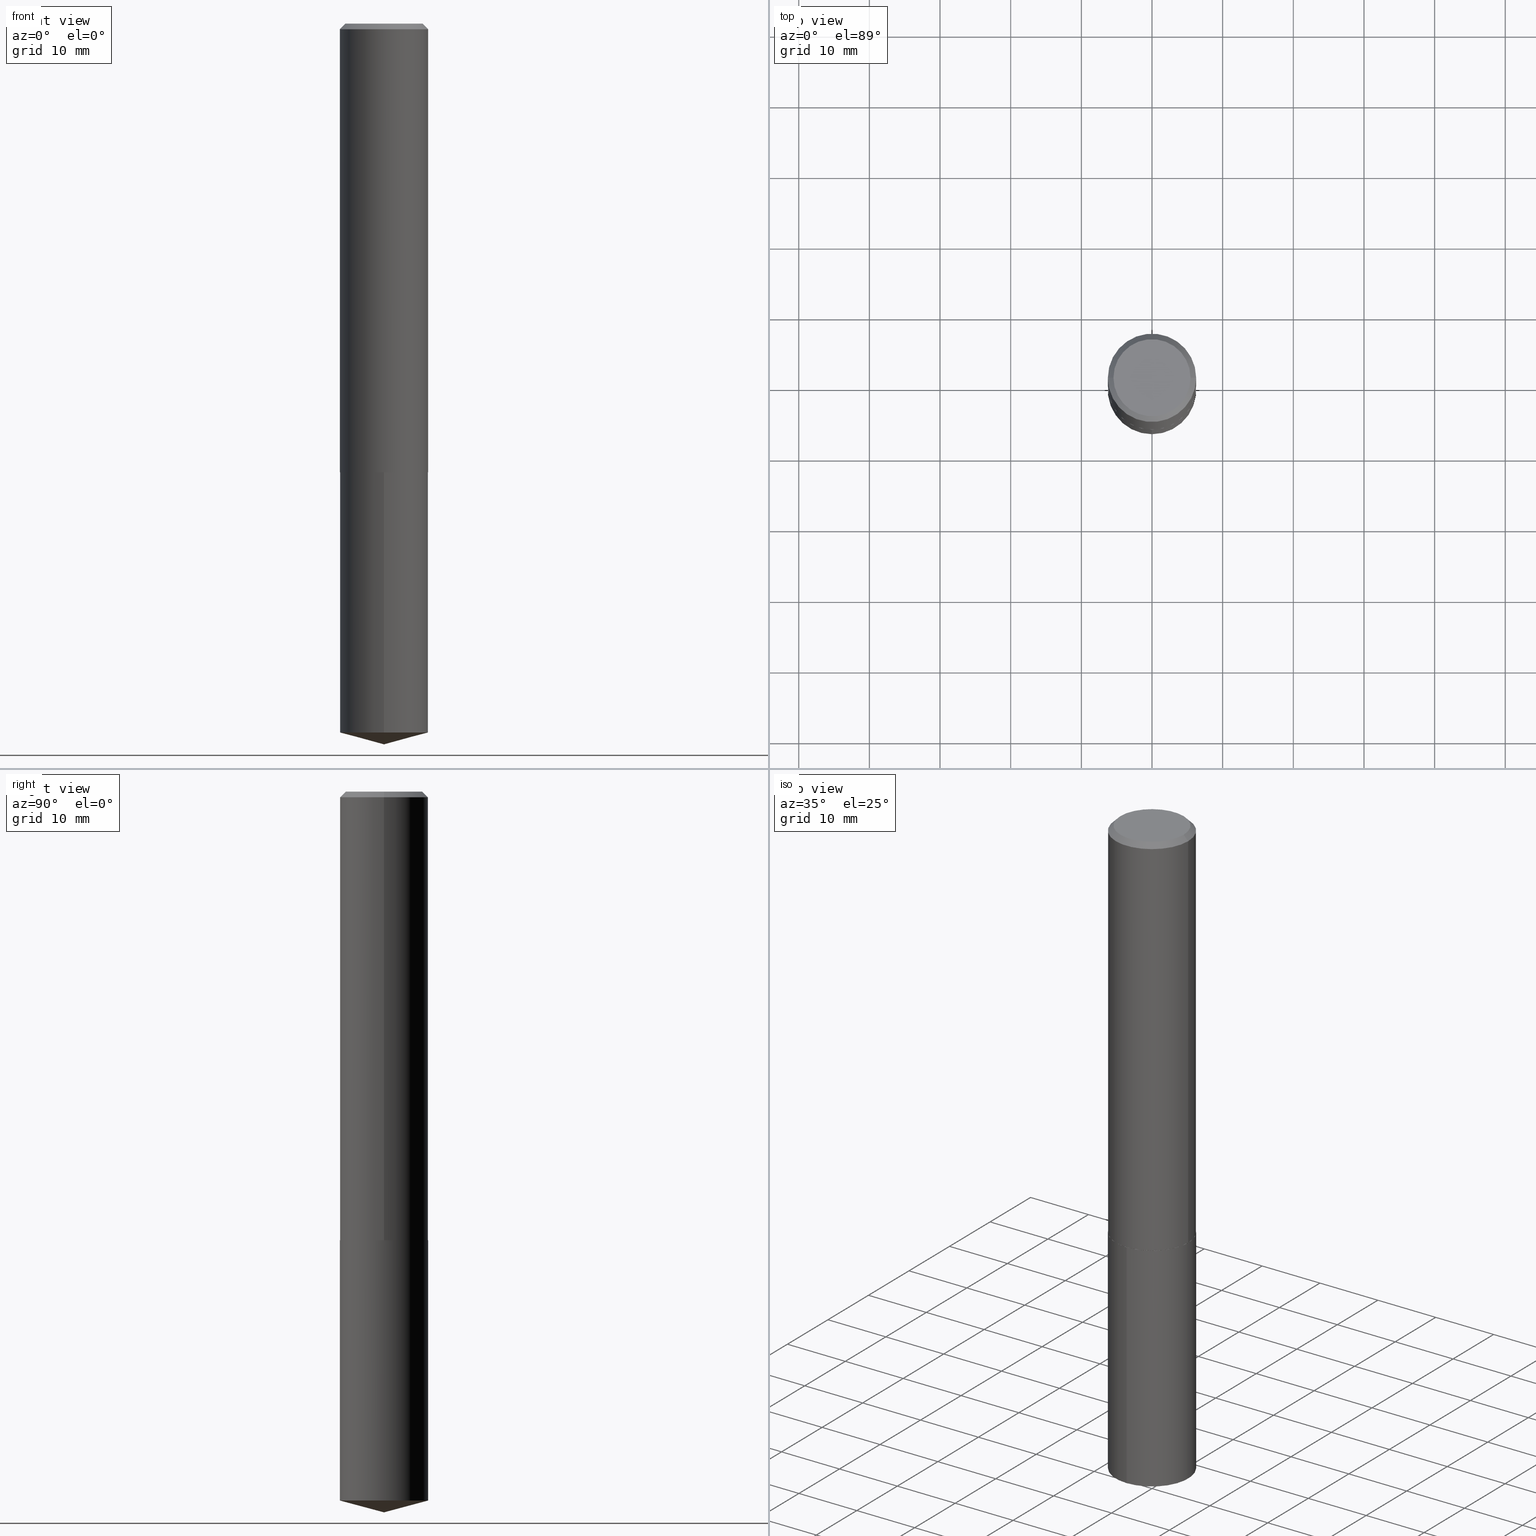
[diagram: canonical four-view strip — front | top / right | iso, engineering-drawing reading convention]
A machine part, canonical four-view strip (front | top / right | iso — engineering-drawing reading convention). The complete STEP part file that produces these views, byte-faithful:
ISO-10303-21;
HEADER;
FILE_DESCRIPTION (( 'STEP AP203' ),
    '1' );
FILE_NAME ('69045.STEP',
    '2024-04-23T14:37:59',
    ( '' ),
    ( '' ),
    'SwSTEP 2.0',
    'SolidWorks 2023',
    '' );
FILE_SCHEMA (( 'CONFIG_CONTROL_DESIGN' ));
ENDSEC;

DATA;
#1 = DIRECTION ( 'NONE',  ( -0.7071067811868855246, 7.493145998871575317E-15, 0.7071067811862095098 ) ) ;
#2 = CIRCLE ( 'NONE', #312, 0.2460500000000002963 ) ;
#3 = MECHANICAL_CONTEXT ( 'NONE', #172, 'mechanical' ) ;
#4 = VERTEX_POINT ( 'NONE', #260 ) ;
#5 = PERSON_AND_ORGANIZATION_ROLE ( 'creator' ) ;
#6 = DIRECTION ( 'NONE',  ( -6.745023994389839133E-15, -0.9659258262890676461, 0.2588190451025225713 ) ) ;
#7 = ADVANCED_FACE ( 'NONE', ( #365 ), #93, .T. ) ;
#8 = PERSON_AND_ORGANIZATION ( #285, #183 ) ;
#9 = DIRECTION ( 'NONE',  ( -2.438088387897960049E-29, 3.491481338843145188E-15, 1.000000000000000000 ) ) ;
#10 = PRODUCT_DEFINITION_FORMATION_WITH_SPECIFIED_SOURCE ( 'ANY', '', #186, .NOT_KNOWN. ) ;
#11 = CARTESIAN_POINT ( 'NONE',  ( -0.2455500000000002125, -6.980967284140940741E-15, -2.499899999999999789 ) ) ;
#12 = EDGE_CURVE ( 'NONE', #211, #199, #232, .T. ) ;
#13 = DIRECTION ( 'NONE',  ( 1.000000000000000000, -6.982962677686265922E-15, 0.000000000000000000 ) ) ;
#14 = CARTESIAN_POINT ( 'NONE',  ( -8.644804156119283188E-28, 1.234534581619819619E-13, 35.35437874015748605 ) ) ;
#15 = CLOSED_SHELL ( 'NONE', ( #87, #7, #227, #259, #295 ) ) ;
#16 = APPROVAL_PERSON_ORGANIZATION ( #115, #261, #29 ) ;
#17 = CARTESIAN_POINT ( 'NONE',  ( 0.2460500000000001575, -1.718157966844706921E-15, 1.199783295684590764E-29 ) ) ;
#18 = CARTESIAN_POINT ( 'NONE',  ( 9.658659434360956272E-29, -1.379109997633285190E-14, -3.949771101202322665 ) ) ;
#19 = CARTESIAN_POINT ( 'NONE',  ( -2.949913012720698115E-47, 4.211693974208535336E-33, 1.206277097160147711E-18 ) ) ;
#20 = ORIENTED_EDGE ( 'NONE', *, *, #112, .F. ) ;
#21 = AXIS2_PLACEMENT_3D ( 'NONE', #212, #101, #189 ) ;
#22 = PLANE ( 'NONE',  #194 ) ;
#23 = DIRECTION ( 'NONE',  ( -1.000000000000000000, 6.982962677686265922E-15, 0.000000000000000000 ) ) ;
#24 = EDGE_LOOP ( 'NONE', ( #20, #149, #351, #137 ) ) ;
#25 = EDGE_CURVE ( 'NONE', #267, #388, #72, .T. ) ;
#26 = CIRCLE ( 'NONE', #319, 0.2460499999999999909 ) ;
#27 = VERTEX_POINT ( 'NONE', #327 ) ;
#28 = ORIENTED_EDGE ( 'NONE', *, *, #25, .T. ) ;
#29 = APPROVAL_ROLE ( '' ) ;
#30 = ORIENTED_EDGE ( 'NONE', *, *, #109, .F. ) ;
#31 = EDGE_CURVE ( 'NONE', #4, #27, #323, .T. ) ;
#32 = CIRCLE ( 'NONE', #21, 0.2460499999999999909 ) ;
#33 = AXIS2_PLACEMENT_3D ( 'NONE', #47, #160, #99 ) ;
#34 = ORIENTED_EDGE ( 'NONE', *, *, #156, .T. ) ;
#35 = CIRCLE ( 'NONE', #230, 0.2460499999999999909 ) ;
#36 = ADVANCED_FACE ( 'NONE', ( #178 ), #290, .F. ) ;
#37 = ORIENTED_EDGE ( 'NONE', *, *, #156, .F. ) ;
#38 = CARTESIAN_POINT ( 'NONE',  ( -1.718157966844644601E-15, -0.2460500000000087339, -2.499899999999999345 ) ) ;
#39 = FACE_OUTER_BOUND ( 'NONE', #390, .T. ) ;
#40 = AXIS2_PLACEMENT_3D ( 'NONE', #80, #163, #277 ) ;
#41 = EDGE_CURVE ( 'NONE', #66, #211, #385, .T. ) ;
#42 = APPROVAL_DATE_TIME ( #221, #132 ) ;
#43 =( LENGTH_UNIT ( ) NAMED_UNIT ( * ) SI_UNIT ( $, .METRE. ) );
#44 = LINE ( 'NONE', #45, #145 ) ;
#45 = CARTESIAN_POINT ( 'NONE',  ( 0.2460499999999999909, -1.797134324190534528E-15, -0.03125000000000020123 ) ) ;
#46 = DIRECTION ( 'NONE',  ( -2.445468806185136597E-29, 3.491481338843145583E-15, 1.000000000000000000 ) ) ;
#47 = CARTESIAN_POINT ( 'NONE',  ( 7.642090019328601786E-31, -1.091087918388490144E-16, -0.03125000000000020123 ) ) ;
#48 = CIRCLE ( 'NONE', #200, 0.2455500000000002125 ) ;
#49 =( CONVERSION_BASED_UNIT ( 'INCH', #273 ) LENGTH_UNIT ( ) NAMED_UNIT ( #383 ) );
#50 = DIRECTION ( 'NONE',  ( -2.445204930865101317E-29, 3.491859223320286804E-15, 1.000000000000000000 ) ) ;
#51 = DIRECTION ( 'NONE',  ( 1.000000000000000000, -6.982962677686265922E-15, 4.876176775795935793E-29 ) ) ;
#52 = CC_DESIGN_PERSON_AND_ORGANIZATION_ASSIGNMENT ( #8, #321, ( #186 ) ) ;
#53 = CARTESIAN_POINT ( 'NONE',  ( 0.000000000000000000, 0.000000000000000000, 0.000000000000000000 ) ) ;
#54 = AXIS2_PLACEMENT_3D ( 'NONE', #103, #46, #214 ) ;
#55 = DIRECTION ( 'NONE',  ( 1.000000000000000000, -6.982962677686265922E-15, 4.876176775795935793E-29 ) ) ;
#56 = ORIENTED_EDGE ( 'NONE', *, *, #203, .F. ) ;
#57 = CC_DESIGN_PERSON_AND_ORGANIZATION_ASSIGNMENT ( #148, #5, ( #10 ) ) ;
#58 = DIRECTION ( 'NONE',  ( -2.445204930865101317E-29, 3.491859223320286804E-15, 1.000000000000000000 ) ) ;
#59 = DATE_AND_TIME ( #82, #161 ) ;
#60 = ORIENTED_EDGE ( 'NONE', *, *, #31, .F. ) ;
#61 = APPLICATION_PROTOCOL_DEFINITION ( 'international standard', 'config_control_design', 1994, #288 ) ;
#62 = ORIENTED_EDGE ( 'NONE', *, *, #41, .T. ) ;
#63 = ORIENTED_EDGE ( 'NONE', *, *, #12, .T. ) ;
#64 = PERSON_AND_ORGANIZATION ( #285, #183 ) ;
#65 = AXIS2_PLACEMENT_3D ( 'NONE', #193, #384, #229 ) ;
#66 = VERTEX_POINT ( 'NONE', #245 ) ;
#67 = COORDINATED_UNIVERSAL_TIME_OFFSET ( 5, 0, .BEHIND. ) ;
#68 = LINE ( 'NONE', #244, #81 ) ;
#69 = CARTESIAN_POINT ( 'NONE',  ( 6.113427468582223828E-29, -8.728354198973981431E-15, -2.499900000000000233 ) ) ;
#70 = CARTESIAN_POINT ( 'NONE',  ( 0.2460499999999999909, -1.827266758683554839E-15, -0.03125000000000020123 ) ) ;
#71 = DIRECTION ( 'NONE',  ( -2.445468806185136597E-29, 3.491481338843145583E-15, 1.000000000000000000 ) ) ;
#72 = CIRCLE ( 'NONE', #175, 0.2460499999999999909 ) ;
#73 = VECTOR ( 'NONE', #131, 39.37007874015748143 ) ;
#74 = LINE ( 'NONE', #315, #73 ) ;
#75 = LINE ( 'NONE', #185, #247 ) ;
#76 = EDGE_CURVE ( 'NONE', #236, #202, #322, .T. ) ;
#77 = CYLINDRICAL_SURFACE ( 'NONE', #65, 0.2460499999999999909 ) ;
#78 = DIRECTION ( 'NONE',  ( -6.982962677686265922E-15, -1.000000000000000000, 4.441126589984577246E-15 ) ) ;
#79 = CARTESIAN_POINT ( 'NONE',  ( 0.2147999999999999909, -1.635384647055929600E-15, 1.206277097171110489E-18 ) ) ;
#80 = CARTESIAN_POINT ( 'NONE',  ( 6.112204734179131027E-29, -8.726608458304559138E-15, -2.499400000000000066 ) ) ;
#81 = VECTOR ( 'NONE', #333, 39.37007874015748143 ) ;
#82 = CALENDAR_DATE ( 2024, 23, 4 ) ;
#83 = EDGE_LOOP ( 'NONE', ( #228, #359 ) ) ;
#84 = VECTOR ( 'NONE', #6, 39.37007874015748854 ) ;
#85 = SECURITY_CLASSIFICATION ( '', '', #364 ) ;
#86 = ORIENTED_EDGE ( 'NONE', *, *, #240, .T. ) ;
#87 = ADVANCED_FACE ( 'NONE', ( #374 ), #96, .T. ) ;
#88 = EDGE_LOOP ( 'NONE', ( #363, #387 ) ) ;
#89 = EDGE_CURVE ( 'NONE', #91, #267, #191, .T. ) ;
#90 = APPROVAL_DATE_TIME ( #235, #261 ) ;
#91 = VERTEX_POINT ( 'NONE', #270 ) ;
#92 = PERSON_AND_ORGANIZATION ( #285, #183 ) ;
#93 = CONICAL_SURFACE ( 'NONE', #311, 146.9311341562559505, 1.308996938995748760 ) ;
#94 = AXIS2_PLACEMENT_3D ( 'NONE', #53, #284, #51 ) ;
#95 = ORIENTED_EDGE ( 'NONE', *, *, #174, .F. ) ;
#96 = CYLINDRICAL_SURFACE ( 'NONE', #377, 0.2460499999999999909 ) ;
#97 = PRODUCT_DEFINITION_SHAPE ( 'NONE', 'NONE',  #361 ) ;
#98 = LINE ( 'NONE', #17, #336 ) ;
#99 = DIRECTION ( 'NONE',  ( -1.000000000000000000, 6.982962677686265922E-15, 0.000000000000000000 ) ) ;
#100 = FACE_OUTER_BOUND ( 'NONE', #353, .T. ) ;
#101 = DIRECTION ( 'NONE',  ( -2.445204930865101317E-29, 3.491859223320286804E-15, 1.000000000000000000 ) ) ;
#102 = EDGE_CURVE ( 'NONE', #27, #140, #32, .T. ) ;
#103 = CARTESIAN_POINT ( 'NONE',  ( 6.112204734179131027E-29, -8.726608458304559138E-15, -2.499400000000000066 ) ) ;
#104 = CARTESIAN_POINT ( 'NONE',  ( 6.112204734179131027E-29, -8.726608458304559138E-15, -2.499400000000000066 ) ) ;
#105 = CC_DESIGN_APPROVAL ( #162, ( #10 ) ) ;
#106 = EDGE_CURVE ( 'NONE', #182, #388, #98, .T. ) ;
#107 = CARTESIAN_POINT ( 'NONE',  ( 6.113427468582222707E-29, -8.728354198973978275E-15, -2.499899999999999789 ) ) ;
#108 = FACE_OUTER_BOUND ( 'NONE', #293, .T. ) ;
#109 = EDGE_CURVE ( 'NONE', #202, #236, #167, .T. ) ;
#110 = ORIENTED_EDGE ( 'NONE', *, *, #237, .F. ) ;
#111 = CARTESIAN_POINT ( 'NONE',  ( 7.642090019328601786E-31, -1.091087918388490144E-16, -0.03125000000000020123 ) ) ;
#112 = EDGE_CURVE ( 'NONE', #199, #267, #123, .T. ) ;
#113 = ORIENTED_EDGE ( 'NONE', *, *, #357, .T. ) ;
#114 = ORIENTED_EDGE ( 'NONE', *, *, #76, .F. ) ;
#115 = PERSON_AND_ORGANIZATION ( #285, #183 ) ;
#116 = AXIS2_PLACEMENT_3D ( 'NONE', #130, #71, #304 ) ;
#117 = ORIENTED_EDGE ( 'NONE', *, *, #89, .F. ) ;
#118 = CARTESIAN_POINT ( 'NONE',  ( 7.642090019328601786E-31, -1.091087918388490144E-16, -0.03125000000000020123 ) ) ;
#119 = DIRECTION ( 'NONE',  ( 0.000000000000000000, 0.000000000000000000, 1.000000000000000000 ) ) ;
#120 = EDGE_LOOP ( 'NONE', ( #326, #243, #34, #279 ) ) ;
#121 = DATE_AND_TIME ( #144, #177 ) ;
#122 = CIRCLE ( 'NONE', #128, 0.2460500000000002963 ) ;
#123 = LINE ( 'NONE', #272, #265 ) ;
#124 = DIRECTION ( 'NONE',  ( -2.445468806185136597E-29, 3.491481338843145583E-15, 1.000000000000000000 ) ) ;
#125 = CC_DESIGN_PERSON_AND_ORGANIZATION_ASSIGNMENT ( #92, #331, ( #85 ) ) ;
#126 = CARTESIAN_POINT ( 'NONE',  ( 9.997693305512870448E-29, -3.165864441807387346E-15, -2.499900000000000233 ) ) ;
#127 = DIRECTION ( 'NONE',  ( -0.7071067811865453523, 2.468850131082234184E-15, -0.7071067811865496822 ) ) ;
#128 = AXIS2_PLACEMENT_3D ( 'NONE', #104, #136, #257 ) ;
#129 = ADVANCED_BREP_SHAPE_REPRESENTATION ( '69045', ( #242, #238, #337 ), #350 ) ;
#130 = CARTESIAN_POINT ( 'NONE',  ( 6.113427468582222707E-29, -8.728354198973978275E-15, -2.499899999999999789 ) ) ;
#131 = DIRECTION ( 'NONE',  ( -2.445204930865101317E-29, 3.491859223320287199E-15, 1.000000000000000000 ) ) ;
#132 = APPROVAL ( #369, 'UNSPECIFIED' ) ;
#133 = DIRECTION ( 'NONE',  ( 2.445468806185136597E-29, -3.491481338843145583E-15, -1.000000000000000000 ) ) ;
#134 = AXIS2_PLACEMENT_3D ( 'NONE', #126, #9, #246 ) ;
#135 = FACE_OUTER_BOUND ( 'NONE', #286, .T. ) ;
#136 = DIRECTION ( 'NONE',  ( -2.445468806185136597E-29, 3.491481338843145583E-15, 1.000000000000000000 ) ) ;
#137 = ORIENTED_EDGE ( 'NONE', *, *, #25, .F. ) ;
#138 = AXIS2_PLACEMENT_3D ( 'NONE', #14, #157, #220 ) ;
#139 = EDGE_LOOP ( 'NONE', ( #347, #171, #30, #287 ) ) ;
#140 = VERTEX_POINT ( 'NONE', #215 ) ;
#141 = DESIGN_CONTEXT ( 'detailed design', #288, 'design' ) ;
#142 = CALENDAR_DATE ( 2024, 23, 4 ) ;
#143 = DIRECTION ( 'NONE',  ( -6.982962677686265133E-15, -1.000000000000000000, 3.510303681827617951E-15 ) ) ;
#144 = CALENDAR_DATE ( 2024, 23, 4 ) ;
#145 = VECTOR ( 'NONE', #159, 39.37007874015748143 ) ;
#146 = AXIS2_PLACEMENT_3D ( 'NONE', #19, #380, #222 ) ;
#147 = ORIENTED_EDGE ( 'NONE', *, *, #106, .F. ) ;
#148 = PERSON_AND_ORGANIZATION ( #285, #183 ) ;
#149 = ORIENTED_EDGE ( 'NONE', *, *, #352, .T. ) ;
#150 =( NAMED_UNIT ( * ) SI_UNIT ( $, .STERADIAN. ) SOLID_ANGLE_UNIT ( ) );
#151 = DIRECTION ( 'NONE',  ( -2.445468806185136877E-29, 3.491481338843145188E-15, 1.000000000000000000 ) ) ;
#152 = AXIS2_PLACEMENT_3D ( 'NONE', #251, #368, #192 ) ;
#153 = AXIS2_PLACEMENT_3D ( 'NONE', #111, #133, #23 ) ;
#154 = DIRECTION ( 'NONE',  ( -2.445204930865101317E-29, 3.491859223320286804E-15, 1.000000000000000000 ) ) ;
#155 = PERSON_AND_ORGANIZATION ( #285, #183 ) ;
#156 = EDGE_CURVE ( 'NONE', #66, #182, #68, .T. ) ;
#157 = DIRECTION ( 'NONE',  ( -2.445204930865101317E-29, 3.491859223320286804E-15, 1.000000000000000000 ) ) ;
#158 =( NAMED_UNIT ( * ) PLANE_ANGLE_UNIT ( ) SI_UNIT ( $, .RADIAN. ) );
#159 = DIRECTION ( 'NONE',  ( 0.7071067811865453523, -7.319954787623248157E-15, -0.7071067811865496822 ) ) ;
#160 = DIRECTION ( 'NONE',  ( 2.445468806185136597E-29, -3.491481338843145583E-15, -1.000000000000000000 ) ) ;
#161 = LOCAL_TIME ( 10, 37, 59.00000000000000000, #292 ) ;
#162 = APPROVAL ( #179, 'UNSPECIFIED' ) ;
#163 = DIRECTION ( 'NONE',  ( -2.445468806185136597E-29, 3.491481338843145583E-15, 1.000000000000000000 ) ) ;
#164 = FACE_OUTER_BOUND ( 'NONE', #88, .T. ) ;
#165 = CYLINDRICAL_SURFACE ( 'NONE', #94, 0.2460500000000001575 ) ;
#166 = ORIENTED_EDGE ( 'NONE', *, *, #357, .F. ) ;
#167 = CIRCLE ( 'NONE', #216, 0.2460499999999999909 ) ;
#168 = CIRCLE ( 'NONE', #146, 0.2147999999999999909 ) ;
#169 = EDGE_CURVE ( 'NONE', #376, #388, #44, .T. ) ;
#170 = CARTESIAN_POINT ( 'NONE',  ( -1.474956506360349058E-47, 2.105846987104267668E-33, 6.031385485800738553E-19 ) ) ;
#171 = ORIENTED_EDGE ( 'NONE', *, *, #237, .T. ) ;
#172 = APPLICATION_CONTEXT ( 'configuration controlled 3d designs of mechanical parts and assemblies' ) ;
#173 = ORIENTED_EDGE ( 'NONE', *, *, #197, .F. ) ;
#174 = EDGE_CURVE ( 'NONE', #4, #140, #75, .T. ) ;
#175 = AXIS2_PLACEMENT_3D ( 'NONE', #118, #268, #204 ) ;
#176 = PERSON_AND_ORGANIZATION_ROLE ( 'design_supplier' ) ;
#177 = LOCAL_TIME ( 10, 37, 59.00000000000000000, #205 ) ;
#178 = FACE_OUTER_BOUND ( 'NONE', #239, .T. ) ;
#179 = APPROVAL_STATUS ( 'not_yet_approved' ) ;
#180 = ORIENTED_EDGE ( 'NONE', *, *, #102, .F. ) ;
#181 = ADVANCED_FACE ( 'NONE', ( #39 ), #349, .T. ) ;
#182 = VERTEX_POINT ( 'NONE', #303 ) ;
#183 = ORGANIZATION ( 'UNSPECIFIED', 'UNSPECIFIED', '' ) ;
#184 = ORIENTED_EDGE ( 'NONE', *, *, #89, .T. ) ;
#185 = CARTESIAN_POINT ( 'NONE',  ( 9.820540333612709261E-29, -1.402036973627846301E-14, -4.015699999999999825 ) ) ;
#186 = PRODUCT ( '69045', '69045', '', ( #3 ) ) ;
#187 = DIRECTION ( 'NONE',  ( -2.445468806185136597E-29, 3.491481338843145583E-15, 1.000000000000000000 ) ) ;
#188 = CLOSED_SHELL ( 'NONE', ( #281, #300, #341, #36, #381, #250, #181, #263 ) ) ;
#189 = DIRECTION ( 'NONE',  ( -6.982962677686265922E-15, -1.000000000000000000, 4.441126589984577246E-15 ) ) ;
#190 = UNCERTAINTY_MEASURE_WITH_UNIT (LENGTH_MEASURE( 1.000000000000000082E-05 ), #49, 'distance_accuracy_value', 'NONE');
#191 = LINE ( 'NONE', #310, #358 ) ;
#192 = DIRECTION ( 'NONE',  ( -6.982962677686265922E-15, -1.000000000000000000, 4.441126589984577246E-15 ) ) ;
#193 = CARTESIAN_POINT ( 'NONE',  ( 6.113427468582223828E-29, -8.728354198973981431E-15, -2.499900000000000233 ) ) ;
#194 = AXIS2_PLACEMENT_3D ( 'NONE', #170, #223, #278 ) ;
#195 = CARTESIAN_POINT ( 'NONE',  ( 6.112204734179131027E-29, -8.726608458304559138E-15, -2.499400000000000066 ) ) ;
#196 = FACE_OUTER_BOUND ( 'NONE', #120, .T. ) ;
#197 = EDGE_CURVE ( 'NONE', #376, #91, #210, .T. ) ;
#198 = DIRECTION ( 'NONE',  ( -2.445468806185136597E-29, 3.491481338843145583E-15, 1.000000000000000000 ) ) ;
#199 = VERTEX_POINT ( 'NONE', #249 ) ;
#200 = AXIS2_PLACEMENT_3D ( 'NONE', #107, #225, #346 ) ;
#201 = VECTOR ( 'NONE', #274, 39.37007874015748143 ) ;
#202 = VERTEX_POINT ( 'NONE', #38 ) ;
#203 = EDGE_CURVE ( 'NONE', #388, #267, #35, .T. ) ;
#204 = DIRECTION ( 'NONE',  ( 1.000000000000000000, -6.982962677686265922E-15, 0.000000000000000000 ) ) ;
#205 = COORDINATED_UNIVERSAL_TIME_OFFSET ( 5, 0, .BEHIND. ) ;
#206 = CONICAL_SURFACE ( 'NONE', #40, 0.2460500000000002963, 0.7853981633979263410 ) ;
#207 = EDGE_LOOP ( 'NONE', ( #62, #63, #166, #37 ) ) ;
#208 = CARTESIAN_POINT ( 'NONE',  ( -8.644804156119283188E-28, 1.234534581619819619E-13, 35.35437874015748605 ) ) ;
#209 = CARTESIAN_POINT ( 'NONE',  ( 9.819209440874986730E-29, -1.402225908308727515E-14, -4.015699999999999825 ) ) ;
#210 = CIRCLE ( 'NONE', #254, 0.2147999999999999909 ) ;
#211 = VERTEX_POINT ( 'NONE', #11 ) ;
#212 = CARTESIAN_POINT ( 'NONE',  ( 9.658659434360956272E-29, -1.379109997633285190E-14, -3.949771101202322665 ) ) ;
#213 = APPROVAL_ROLE ( '' ) ;
#214 = DIRECTION ( 'NONE',  ( 1.000000000000000000, -6.982962677686261977E-15, 0.000000000000000000 ) ) ;
#215 = CARTESIAN_POINT ( 'NONE',  ( 1.748290401337823473E-15, 0.2460499999999862797, -3.949771101202323553 ) ) ;
#216 = AXIS2_PLACEMENT_3D ( 'NONE', #309, #154, #332 ) ;
#217 = CONICAL_SURFACE ( 'NONE', #54, 0.2460500000000002963, 0.7853981633979263410 ) ;
#218 = DIRECTION ( 'NONE',  ( -2.445468806185136877E-29, 3.491481338843145188E-15, 1.000000000000000000 ) ) ;
#219 = CC_DESIGN_PERSON_AND_ORGANIZATION_ASSIGNMENT ( #302, #360, ( #361 ) ) ;
#220 = DIRECTION ( 'NONE',  ( -6.982962677686265133E-15, -1.000000000000000000, 3.510303681827617951E-15 ) ) ;
#221 = DATE_AND_TIME ( #308, #324 ) ;
#222 = DIRECTION ( 'NONE',  ( 1.000000000000000000, -6.982962677686266711E-15, 4.876228898018882925E-29 ) ) ;
#223 = DIRECTION ( 'NONE',  ( 2.438088387897960049E-29, -3.491481338843145188E-15, -1.000000000000000000 ) ) ;
#224 = APPROVAL_PERSON_ORGANIZATION ( #64, #162, #354 ) ;
#225 = DIRECTION ( 'NONE',  ( -2.445468806185136597E-29, 3.491481338843145583E-15, 1.000000000000000000 ) ) ;
#226 = DIRECTION ( 'NONE',  ( 2.445204930865100476E-29, -3.491859223320287199E-15, -1.000000000000000000 ) ) ;
#227 = ADVANCED_FACE ( 'NONE', ( #100 ), #297, .T. ) ;
#228 = ORIENTED_EDGE ( 'NONE', *, *, #109, .T. ) ;
#229 = DIRECTION ( 'NONE',  ( -6.982962677686265922E-15, -1.000000000000000000, 4.441126589984577246E-15 ) ) ;
#230 = AXIS2_PLACEMENT_3D ( 'NONE', #372, #187, #13 ) ;
#231 = ORIENTED_EDGE ( 'NONE', *, *, #269, .F. ) ;
#232 = LINE ( 'NONE', #264, #343 ) ;
#233 = CARTESIAN_POINT ( 'NONE',  ( 0.000000000000000000, 0.000000000000000000, 0.000000000000000000 ) ) ;
#234 = EDGE_LOOP ( 'NONE', ( #60, #355, #180 ) ) ;
#235 = DATE_AND_TIME ( #142, #344 ) ;
#236 = VERTEX_POINT ( 'NONE', #338 ) ;
#237 = EDGE_CURVE ( 'NONE', #140, #236, #334, .T. ) ;
#238 = MANIFOLD_SOLID_BREP ( 'Body-Move/Copy2[2]', #188 ) ;
#239 = EDGE_LOOP ( 'NONE', ( #382, #317 ) ) ;
#240 = EDGE_CURVE ( 'NONE', #27, #202, #74, .T. ) ;
#241 = PERSON_AND_ORGANIZATION ( #285, #183 ) ;
#242 = MANIFOLD_SOLID_BREP ( 'Body-Move/Copy2[1]', #15 ) ;
#243 = ORIENTED_EDGE ( 'NONE', *, *, #373, .T. ) ;
#244 = CARTESIAN_POINT ( 'NONE',  ( 0.2460500000000002963, -1.044476642514926527E-14, -2.499400000000000066 ) ) ;
#245 = CARTESIAN_POINT ( 'NONE',  ( 0.2455500000000002125, -1.044302068447984298E-14, -2.499899999999999789 ) ) ;
#246 = DIRECTION ( 'NONE',  ( 1.000000000000000000, -6.982962677686265922E-15, 4.876176775795935793E-29 ) ) ;
#247 = VECTOR ( 'NONE', #275, 39.37007874015748854 ) ;
#248 = AXIS2_PLACEMENT_3D ( 'NONE', #345, #379, #55 ) ;
#249 = CARTESIAN_POINT ( 'NONE',  ( -0.2460500000000002963, -6.978318056966829540E-15, -2.499400000000000066 ) ) ;
#250 = ADVANCED_FACE ( 'NONE', ( #348 ), #165, .T. ) ;
#251 = CARTESIAN_POINT ( 'NONE',  ( 6.113427468582223828E-29, -8.728354198973981431E-15, -2.499900000000000233 ) ) ;
#252 = CARTESIAN_POINT ( 'NONE',  ( -0.2460499999999999909, -2.669568223733975704E-15, -0.03125000000000020123 ) ) ;
#253 = DIRECTION ( 'NONE',  ( 6.982962677686265922E-15, 1.000000000000000000, -3.491859223320287199E-15 ) ) ;
#254 = AXIS2_PLACEMENT_3D ( 'NONE', #307, #124, #276 ) ;
#255 = CYLINDRICAL_SURFACE ( 'NONE', #248, 0.2460500000000001575 ) ;
#256 = ORIENTED_EDGE ( 'NONE', *, *, #291, .F. ) ;
#257 = DIRECTION ( 'NONE',  ( 1.000000000000000000, -6.982962677686261977E-15, 0.000000000000000000 ) ) ;
#258 = ORIENTED_EDGE ( 'NONE', *, *, #203, .T. ) ;
#259 = ADVANCED_FACE ( 'NONE', ( #316 ), #77, .T. ) ;
#260 = CARTESIAN_POINT ( 'NONE',  ( 9.819209440874985609E-29, -1.402225908308727515E-14, -4.015699999999999825 ) ) ;
#261 = APPROVAL ( #389, 'UNSPECIFIED' ) ;
#262 = ORIENTED_EDGE ( 'NONE', *, *, #291, .T. ) ;
#263 = ADVANCED_FACE ( 'NONE', ( #164 ), #22, .F. ) ;
#264 = CARTESIAN_POINT ( 'NONE',  ( -0.2460500000000002963, -6.978318056966829540E-15, -2.499400000000000066 ) ) ;
#265 = VECTOR ( 'NONE', #218, 39.37007874015748143 ) ;
#266 = CC_DESIGN_APPROVAL ( #132, ( #85 ) ) ;
#267 = VERTEX_POINT ( 'NONE', #252 ) ;
#268 = DIRECTION ( 'NONE',  ( -2.445468806185136597E-29, 3.491481338843145583E-15, 1.000000000000000000 ) ) ;
#269 = EDGE_CURVE ( 'NONE', #91, #376, #168, .T. ) ;
#270 = CARTESIAN_POINT ( 'NONE',  ( -0.2147999999999999909, 1.554494779086433270E-15, 1.206277097149467466E-18 ) ) ;
#271 = CONICAL_SURFACE ( 'NONE', #153, 0.2460499999999999909, 0.7853981633974452814 ) ;
#272 = CARTESIAN_POINT ( 'NONE',  ( -0.2460500000000001575, 1.748290401337727626E-15, -1.210303978957220375E-29 ) ) ;
#273 = LENGTH_MEASURE_WITH_UNIT ( LENGTH_MEASURE( 0.02539999999999999897 ), #43 );
#274 = DIRECTION ( 'NONE',  ( -2.445204930865101317E-29, 3.491859223320287199E-15, 1.000000000000000000 ) ) ;
#275 = DIRECTION ( 'NONE',  ( 6.863315791527694259E-15, 0.9659258262890696445, 0.2588190451025158545 ) ) ;
#276 = DIRECTION ( 'NONE',  ( 1.000000000000000000, -6.982962677686266711E-15, 4.876228898018882925E-29 ) ) ;
#277 = DIRECTION ( 'NONE',  ( 1.000000000000000000, -6.982962677686261977E-15, 0.000000000000000000 ) ) ;
#278 = DIRECTION ( 'NONE',  ( -1.000000000000000000, 6.982962677686265922E-15, -4.876176775795935793E-29 ) ) ;
#279 = ORIENTED_EDGE ( 'NONE', *, *, #352, .F. ) ;
#280 = CC_DESIGN_PERSON_AND_ORGANIZATION_ASSIGNMENT ( #241, #176, ( #10 ) ) ;
#281 = ADVANCED_FACE ( 'NONE', ( #135 ), #271, .T. ) ;
#282 = PLANE ( 'NONE',  #371 ) ;
#283 = ORIENTED_EDGE ( 'NONE', *, *, #112, .T. ) ;
#284 = DIRECTION ( 'NONE',  ( -2.445468806185136597E-29, 3.491481338843145583E-15, 1.000000000000000000 ) ) ;
#285 = PERSON ( 'UNSPECIFIED', 'UNSPECIFIED', 'UNSPECIFIED', ('UNSPECIFIED'), ('UNSPECIFIED'), ('UNSPECIFIED') ) ;
#286 = EDGE_LOOP ( 'NONE', ( #173, #329, #258, #117 ) ) ;
#287 = ORIENTED_EDGE ( 'NONE', *, *, #240, .F. ) ;
#288 = APPLICATION_CONTEXT ( 'configuration controlled 3d designs of mechanical parts and assemblies' ) ;
#289 = CALENDAR_DATE ( 2024, 23, 4 ) ;
#290 = PLANE ( 'NONE',  #134 ) ;
#291 = EDGE_CURVE ( 'NONE', #140, #27, #26, .T. ) ;
#292 = COORDINATED_UNIVERSAL_TIME_OFFSET ( 5, 0, .BEHIND. ) ;
#293 = EDGE_LOOP ( 'NONE', ( #113, #283, #56, #147 ) ) ;
#294 = APPLICATION_PROTOCOL_DEFINITION ( 'international standard', 'config_control_design', 1994, #172 ) ;
#295 = ADVANCED_FACE ( 'NONE', ( #375 ), #282, .F. ) ;
#296 = EDGE_LOOP ( 'NONE', ( #110, #262, #86, #114 ) ) ;
#297 = CONICAL_SURFACE ( 'NONE', #138, 146.9311341562559505, 1.308996938995748760 ) ;
#298 = APPROVAL_DATE_TIME ( #59, #162 ) ;
#299 = CC_DESIGN_DATE_AND_TIME_ASSIGNMENT ( #121, #325, ( #361 ) ) ;
#300 = ADVANCED_FACE ( 'NONE', ( #108 ), #255, .T. ) ;
#301 = ORIENTED_EDGE ( 'NONE', *, *, #169, .F. ) ;
#302 = PERSON_AND_ORGANIZATION ( #285, #183 ) ;
#303 = CARTESIAN_POINT ( 'NONE',  ( 0.2460500000000002963, -1.044476642514926527E-14, -2.499400000000000066 ) ) ;
#304 = DIRECTION ( 'NONE',  ( 1.000000000000000000, -6.982962677686266711E-15, 0.000000000000000000 ) ) ;
#305 = COORDINATED_UNIVERSAL_TIME_OFFSET ( 5, 0, .BEHIND. ) ;
#306 = LOCAL_TIME ( 10, 37, 59.00000000000000000, #67 ) ;
#307 = CARTESIAN_POINT ( 'NONE',  ( -2.949913012720698115E-47, 4.211693974208535336E-33, 1.206277097160147711E-18 ) ) ;
#308 = CALENDAR_DATE ( 2024, 23, 4 ) ;
#309 = CARTESIAN_POINT ( 'NONE',  ( 6.113427468582223828E-29, -8.728354198973981431E-15, -2.499900000000000233 ) ) ;
#310 = CARTESIAN_POINT ( 'NONE',  ( -0.2460499999999999909, 1.609049175005856637E-15, -0.03125000000000020123 ) ) ;
#311 = AXIS2_PLACEMENT_3D ( 'NONE', #208, #58, #143 ) ;
#312 = AXIS2_PLACEMENT_3D ( 'NONE', #195, #198, #318 ) ;
#313 = FACE_OUTER_BOUND ( 'NONE', #207, .T. ) ;
#314 = PRODUCT_RELATED_PRODUCT_CATEGORY ( 'detail', '', ( #186 ) ) ;
#315 = CARTESIAN_POINT ( 'NONE',  ( -1.718157966844644601E-15, -0.2460500000000087339, -2.499899999999999345 ) ) ;
#316 = FACE_OUTER_BOUND ( 'NONE', #296, .T. ) ;
#317 = ORIENTED_EDGE ( 'NONE', *, *, #373, .F. ) ;
#318 = DIRECTION ( 'NONE',  ( 1.000000000000000000, -6.982962677686261977E-15, 0.000000000000000000 ) ) ;
#319 = AXIS2_PLACEMENT_3D ( 'NONE', #18, #50, #78 ) ;
#320 = CC_DESIGN_DATE_AND_TIME_ASSIGNMENT ( #335, #366, ( #85 ) ) ;
#321 = PERSON_AND_ORGANIZATION_ROLE ( 'design_owner' ) ;
#322 = CIRCLE ( 'NONE', #152, 0.2460499999999999909 ) ;
#323 = LINE ( 'NONE', #209, #84 ) ;
#324 = LOCAL_TIME ( 10, 37, 59.00000000000000000, #305 ) ;
#325 = DATE_TIME_ROLE ( 'creation_date' ) ;
#326 = ORIENTED_EDGE ( 'NONE', *, *, #12, .F. ) ;
#327 = CARTESIAN_POINT ( 'NONE',  ( -1.718157966844609497E-15, -0.2460500000000138687, -3.949771101202321777 ) ) ;
#328 = DIRECTION ( 'NONE',  ( 1.000000000000000000, 0.000000000000000000, 0.000000000000000000 ) ) ;
#329 = ORIENTED_EDGE ( 'NONE', *, *, #169, .T. ) ;
#330 = CC_DESIGN_APPROVAL ( #261, ( #361 ) ) ;
#331 = PERSON_AND_ORGANIZATION_ROLE ( 'classification_officer' ) ;
#332 = DIRECTION ( 'NONE',  ( -6.982962677686265922E-15, -1.000000000000000000, 4.441126589984577246E-15 ) ) ;
#333 = DIRECTION ( 'NONE',  ( 0.7071067811868855246, -2.468850131085797074E-15, 0.7071067811862095098 ) ) ;
#334 = LINE ( 'NONE', #340, #201 ) ;
#335 = DATE_AND_TIME ( #289, #306 ) ;
#336 = VECTOR ( 'NONE', #151, 39.37007874015748143 ) ;
#337 = AXIS2_PLACEMENT_3D ( 'NONE', #233, #119, #328 ) ;
#338 = CARTESIAN_POINT ( 'NONE',  ( 1.748290401337823078E-15, 0.2460499999999912479, -2.499900000000001565 ) ) ;
#339 = SHAPE_DEFINITION_REPRESENTATION ( #97, #129 ) ;
#340 = CARTESIAN_POINT ( 'NONE',  ( 1.748290401337787382E-15, 0.2460499999999912479, -2.499900000000001565 ) ) ;
#341 = ADVANCED_FACE ( 'NONE', ( #313 ), #206, .T. ) ;
#342 = CARTESIAN_POINT ( 'NONE',  ( 6.113427468582223828E-29, -8.728354198973981431E-15, -2.499900000000000233 ) ) ;
#343 = VECTOR ( 'NONE', #1, 39.37007874015748143 ) ;
#344 = LOCAL_TIME ( 10, 37, 59.00000000000000000, #356 ) ;
#345 = CARTESIAN_POINT ( 'NONE',  ( 0.000000000000000000, 0.000000000000000000, 0.000000000000000000 ) ) ;
#346 = DIRECTION ( 'NONE',  ( 1.000000000000000000, -6.982962677686266711E-15, 0.000000000000000000 ) ) ;
#347 = ORIENTED_EDGE ( 'NONE', *, *, #102, .T. ) ;
#348 = FACE_OUTER_BOUND ( 'NONE', #24, .T. ) ;
#349 = CONICAL_SURFACE ( 'NONE', #33, 0.2460499999999999909, 0.7853981633974452814 ) ;
#350 =( GEOMETRIC_REPRESENTATION_CONTEXT ( 3 ) GLOBAL_UNCERTAINTY_ASSIGNED_CONTEXT ( ( #190 ) ) GLOBAL_UNIT_ASSIGNED_CONTEXT ( ( #49, #158, #150 ) ) REPRESENTATION_CONTEXT ( 'NONE', 'WORKASPACE' ) );
#351 = ORIENTED_EDGE ( 'NONE', *, *, #106, .T. ) ;
#352 = EDGE_CURVE ( 'NONE', #199, #182, #2, .T. ) ;
#353 = EDGE_LOOP ( 'NONE', ( #95, #362, #256 ) ) ;
#354 = APPROVAL_ROLE ( '' ) ;
#355 = ORIENTED_EDGE ( 'NONE', *, *, #174, .T. ) ;
#356 = COORDINATED_UNIVERSAL_TIME_OFFSET ( 5, 0, .BEHIND. ) ;
#357 = EDGE_CURVE ( 'NONE', #182, #199, #122, .T. ) ;
#358 = VECTOR ( 'NONE', #127, 39.37007874015748143 ) ;
#359 = ORIENTED_EDGE ( 'NONE', *, *, #76, .T. ) ;
#360 = PERSON_AND_ORGANIZATION_ROLE ( 'creator' ) ;
#361 = PRODUCT_DEFINITION ( 'UNKNOWN', '', #10, #141 ) ;
#362 = ORIENTED_EDGE ( 'NONE', *, *, #31, .T. ) ;
#363 = ORIENTED_EDGE ( 'NONE', *, *, #269, .T. ) ;
#364 = SECURITY_CLASSIFICATION_LEVEL ( 'unclassified' ) ;
#365 = FACE_OUTER_BOUND ( 'NONE', #234, .T. ) ;
#366 = DATE_TIME_ROLE ( 'classification_date' ) ;
#367 = DIRECTION ( 'NONE',  ( -2.445204930865101317E-29, 3.491859223320286804E-15, 1.000000000000000000 ) ) ;
#368 = DIRECTION ( 'NONE',  ( -2.445204930865101317E-29, 3.491859223320286804E-15, 1.000000000000000000 ) ) ;
#369 = APPROVAL_STATUS ( 'not_yet_approved' ) ;
#370 = DIRECTION ( 'NONE',  ( -6.982962677686265922E-15, -1.000000000000000000, 4.441126589984577246E-15 ) ) ;
#371 = AXIS2_PLACEMENT_3D ( 'NONE', #342, #226, #253 ) ;
#372 = CARTESIAN_POINT ( 'NONE',  ( 7.642090019328601786E-31, -1.091087918388490144E-16, -0.03125000000000020123 ) ) ;
#373 = EDGE_CURVE ( 'NONE', #211, #66, #48, .T. ) ;
#374 = FACE_OUTER_BOUND ( 'NONE', #139, .T. ) ;
#375 = FACE_OUTER_BOUND ( 'NONE', #83, .T. ) ;
#376 = VERTEX_POINT ( 'NONE', #79 ) ;
#377 = AXIS2_PLACEMENT_3D ( 'NONE', #69, #367, #370 ) ;
#378 = CC_DESIGN_SECURITY_CLASSIFICATION ( #85, ( #10 ) ) ;
#379 = DIRECTION ( 'NONE',  ( -2.445468806185136597E-29, 3.491481338843145583E-15, 1.000000000000000000 ) ) ;
#380 = DIRECTION ( 'NONE',  ( -2.445468806185136597E-29, 3.491481338843145583E-15, 1.000000000000000000 ) ) ;
#381 = ADVANCED_FACE ( 'NONE', ( #196 ), #217, .T. ) ;
#382 = ORIENTED_EDGE ( 'NONE', *, *, #41, .F. ) ;
#383 = DIMENSIONAL_EXPONENTS ( 1.000000000000000000, 0.000000000000000000, 0.000000000000000000, 0.000000000000000000, 0.000000000000000000, 0.000000000000000000, 0.000000000000000000 ) ;
#384 = DIRECTION ( 'NONE',  ( -2.445204930865101317E-29, 3.491859223320286804E-15, 1.000000000000000000 ) ) ;
#385 = CIRCLE ( 'NONE', #116, 0.2455500000000002125 ) ;
#386 = APPROVAL_PERSON_ORGANIZATION ( #155, #132, #213 ) ;
#387 = ORIENTED_EDGE ( 'NONE', *, *, #197, .T. ) ;
#388 = VERTEX_POINT ( 'NONE', #70 ) ;
#389 = APPROVAL_STATUS ( 'not_yet_approved' ) ;
#390 = EDGE_LOOP ( 'NONE', ( #301, #231, #184, #28 ) ) ;
ENDSEC;
END-ISO-10303-21;
